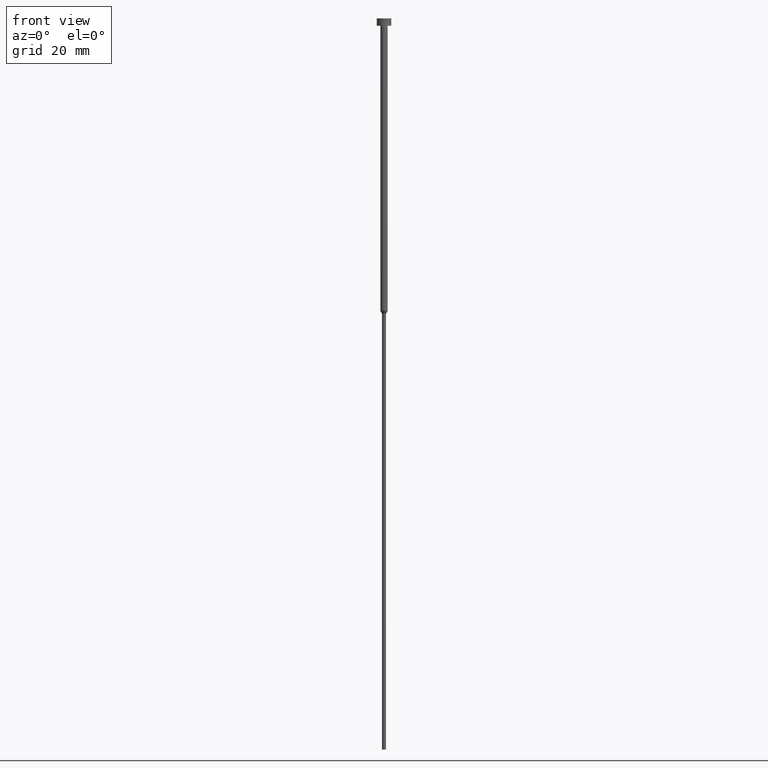
[diagram: clean part render]
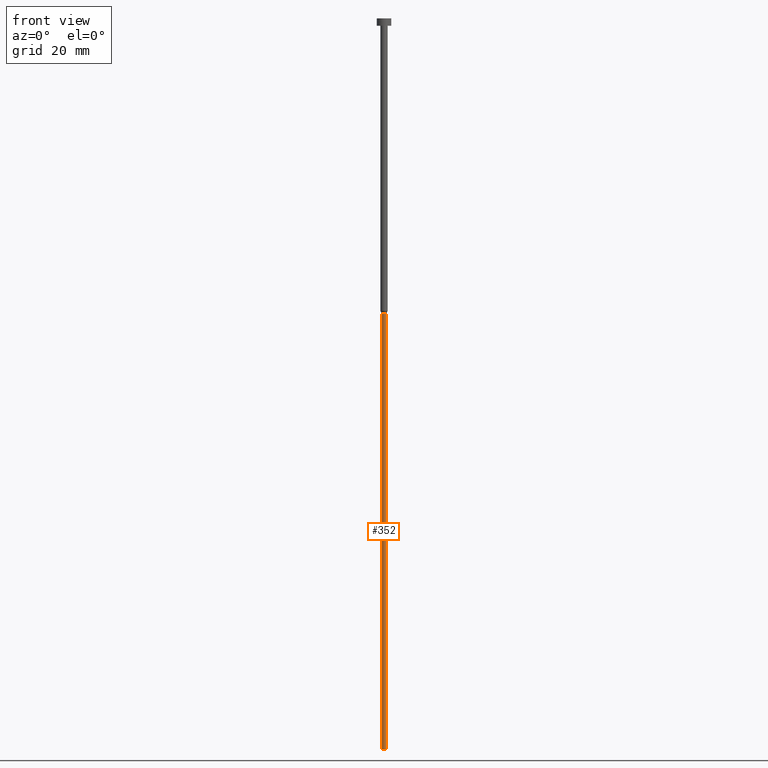
[diagram: same view with one face highlighted and labeled with its STEP entity id]
A machine part, front view. The second image highlights one B-rep face of the part: STEP entity #352.
In plain terms, the highlighted cylindrical surface (edge-blend (fillet) strip) has radius 0.55 mm, axis along (-0, -0, 1).
Its self-contained STEP definition (entity closure, byte-faithful):
#4 = EDGE_CURVE ( 'NONE', #109, #78, #339, .T. ) ;
#12 = CARTESIAN_POINT ( 'NONE',  ( 0.5500000000000000444, 0.000000000000000000, -80.77942286340599765 ) ) ;
#33 = VERTEX_POINT ( 'NONE', #331 ) ;
#50 = CYLINDRICAL_SURFACE ( 'NONE', #99, 0.5499999999999999334 ) ;
#65 = VECTOR ( 'NONE', #79, 1000.000000000000000 ) ;
#78 = VERTEX_POINT ( 'NONE', #12 ) ;
#79 = DIRECTION ( 'NONE',  ( -0.000000000000000000, -0.000000000000000000, 1.000000000000000000 ) ) ;
#80 = CARTESIAN_POINT ( 'NONE',  ( 0.5499999999999999334, 0.000000000000000000, 0.000000000000000000 ) ) ;
#98 = DIRECTION ( 'NONE',  ( -0.000000000000000000, -0.000000000000000000, 1.000000000000000000 ) ) ;
#99 = AXIS2_PLACEMENT_3D ( 'NONE', #232, #98, #145 ) ;
#108 = DIRECTION ( 'NONE',  ( 1.000000000000000000, 0.000000000000000000, 0.000000000000000000 ) ) ;
#109 = VERTEX_POINT ( 'NONE', #276 ) ;
#112 = CIRCLE ( 'NONE', #180, 0.5499999999999999334 ) ;
#126 = CARTESIAN_POINT ( 'NONE',  ( 0.5499999999999999334, 0.000000000000000000, -200.0000000000000000 ) ) ;
#132 = CARTESIAN_POINT ( 'NONE',  ( 0.000000000000000000, 0.000000000000000000, -200.0000000000000000 ) ) ;
#133 = DIRECTION ( 'NONE',  ( -0.000000000000000000, -0.000000000000000000, 1.000000000000000000 ) ) ;
#135 = CARTESIAN_POINT ( 'NONE',  ( -0.5499999999999999334, 6.735557395310441284E-17, 0.000000000000000000 ) ) ;
#138 = EDGE_CURVE ( 'NONE', #309, #78, #193, .T. ) ;
#140 = DIRECTION ( 'NONE',  ( -0.000000000000000000, -0.000000000000000000, 1.000000000000000000 ) ) ;
#145 = DIRECTION ( 'NONE',  ( 1.000000000000000000, 0.000000000000000000, 0.000000000000000000 ) ) ;
#180 = AXIS2_PLACEMENT_3D ( 'NONE', #132, #343, #108 ) ;
#193 = LINE ( 'NONE', #80, #292 ) ;
#195 = LINE ( 'NONE', #135, #65 ) ;
#196 = FACE_OUTER_BOUND ( 'NONE', #204, .T. ) ;
#200 = ORIENTED_EDGE ( 'NONE', *, *, #349, .F. ) ;
#202 = ORIENTED_EDGE ( 'NONE', *, *, #138, .T. ) ;
#204 = EDGE_LOOP ( 'NONE', ( #200, #236, #202, #251 ) ) ;
#216 = DIRECTION ( 'NONE',  ( 1.000000000000000000, 0.000000000000000000, 0.000000000000000000 ) ) ;
#218 = CARTESIAN_POINT ( 'NONE',  ( 0.000000000000000000, 0.000000000000000000, -80.77942286340599765 ) ) ;
#232 = CARTESIAN_POINT ( 'NONE',  ( 0.000000000000000000, 0.000000000000000000, 0.000000000000000000 ) ) ;
#236 = ORIENTED_EDGE ( 'NONE', *, *, #302, .T. ) ;
#251 = ORIENTED_EDGE ( 'NONE', *, *, #4, .F. ) ;
#276 = CARTESIAN_POINT ( 'NONE',  ( -0.5500000000000000444, 6.735557395310442516E-17, -80.77942286340599765 ) ) ;
#292 = VECTOR ( 'NONE', #133, 1000.000000000000000 ) ;
#302 = EDGE_CURVE ( 'NONE', #33, #309, #112, .T. ) ;
#309 = VERTEX_POINT ( 'NONE', #126 ) ;
#331 = CARTESIAN_POINT ( 'NONE',  ( -0.5499999999999999334, 6.735557395310441284E-17, -200.0000000000000000 ) ) ;
#333 = AXIS2_PLACEMENT_3D ( 'NONE', #218, #140, #216 ) ;
#339 = CIRCLE ( 'NONE', #333, 0.5500000000000000444 ) ;
#343 = DIRECTION ( 'NONE',  ( -0.000000000000000000, -0.000000000000000000, 1.000000000000000000 ) ) ;
#349 = EDGE_CURVE ( 'NONE', #33, #109, #195, .T. ) ;
#352 = ADVANCED_FACE ( 'NONE', ( #196 ), #50, .T. ) ;